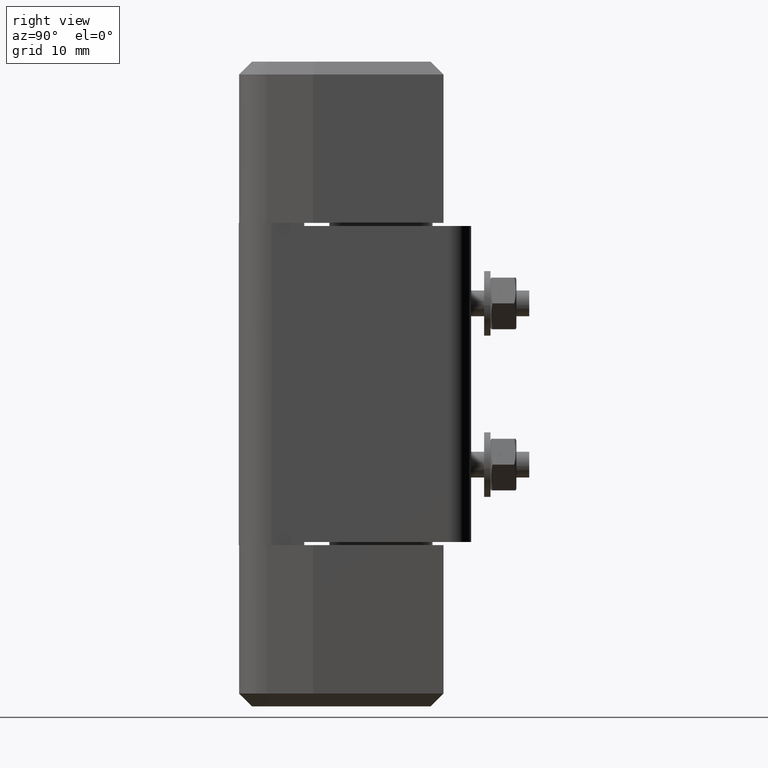
[diagram: clean part render]
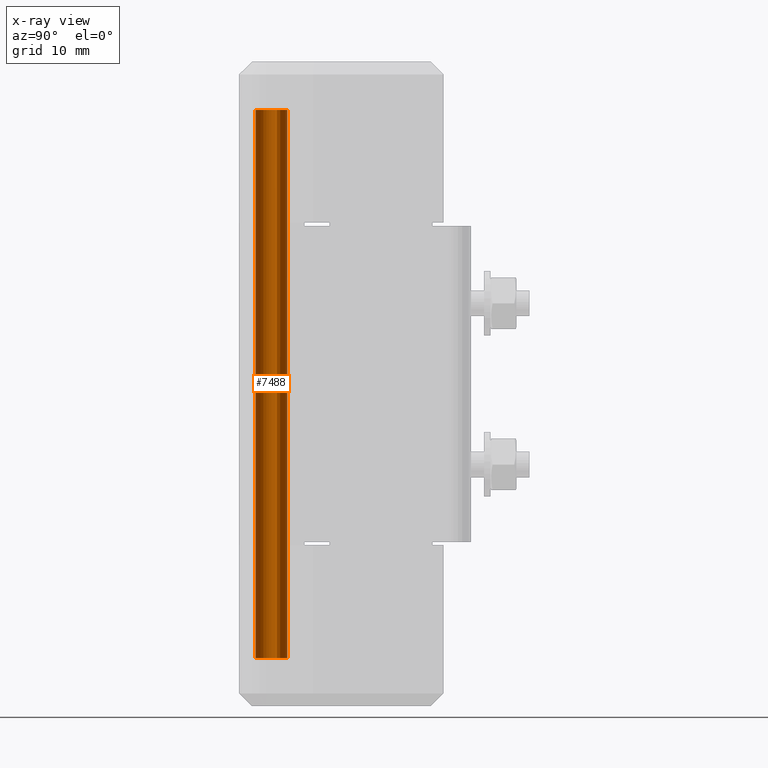
[diagram: x-ray — body ghosted, one internal face saturated and labeled with its STEP entity id]
A machine part, right view, then the same camera in x-ray: the body is ghosted and one INTERNAL B-rep face — a face not visible from any outside direction — is saturated and labeled: STEP entity #7488.
In plain terms, the highlighted face is a freeform B-spline surface patch.
Its self-contained STEP definition (entity closure, byte-faithful):
#7152=CARTESIAN_POINT('',(-2.499999916180715,0.0,7.500000356230601));
#7153=VERTEX_POINT('',#7152);
#7154=CARTESIAN_POINT('',(-0.196147734124220,2.492293250842695,7.500000356409508));
#7155=VERTEX_POINT('',#7154);
#7156=CARTESIAN_POINT('',(-2.499999916180715,0.0,7.500000356230601));
#7157=CARTESIAN_POINT('',(-2.499999916180714,2.310976149120914,7.500000356230601));
#7158=CARTESIAN_POINT('',(-0.196147734124220,2.492293250842695,7.500000356409508));
#7166=(BOUNDED_CURVE()B_SPLINE_CURVE(2,(#7156,#7157,#7158),.UNSPECIFIED.,.F.,.U.)B_SPLINE_CURVE_WITH_KNOTS((3,3),(0.0,0.236331300444724),.UNSPECIFIED.)CURVE()GEOMETRIC_REPRESENTATION_ITEM()RATIONAL_B_SPLINE_CURVE((1.0,0.723120658825503,0.969723355779383))REPRESENTATION_ITEM(''));
#7167=EDGE_CURVE('',#7153,#7155,#7166,.T.);
#7215=CARTESIAN_POINT('',(0.152621344146222,-2.495336912365707,7.500000356230601));
#7216=VERTEX_POINT('',#7215);
#7230=CARTESIAN_POINT('',(0.152621344146222,-2.495336912365706,7.500000356230601));
#7231=CARTESIAN_POINT('',(0.076381906112878,-2.499999916180715,7.500000356230601));
#7232=CARTESIAN_POINT('',(0.0,-2.499999916180715,7.500000356230601));
#7233=CARTESIAN_POINT('',(-2.499999916180715,-2.499999916180715,7.500000356230601));
#7234=CARTESIAN_POINT('',(-2.499999916180715,0.0,7.500000356230601));
#7242=(BOUNDED_CURVE()B_SPLINE_CURVE(2,(#7230,#7231,#7232,#7233,#7234),.UNSPECIFIED.,.F.,.U.)B_SPLINE_CURVE_WITH_KNOTS((3,2,3),(0.739332962183038,0.750000000000000,1.0),.UNSPECIFIED.)CURVE()GEOMETRIC_REPRESENTATION_ITEM()RATIONAL_B_SPLINE_CURVE((0.976072041546902,0.987502787834340,1.0,0.707106781186548,1.0))REPRESENTATION_ITEM(''));
#7243=EDGE_CURVE('',#7216,#7153,#7242,.T.);
#7266=CARTESIAN_POINT('',(2.340358868451774,0.879044906567890,7.500000356230601));
#7267=VERTEX_POINT('',#7266);
#7268=CARTESIAN_POINT('',(-0.196147734124220,2.492293250842696,7.500000356409508));
#7269=CARTESIAN_POINT('',(-0.098225265599204,2.499999916180715,7.500000356230601));
#7270=CARTESIAN_POINT('',(0.0,2.499999916180715,7.500000356230601));
#7271=CARTESIAN_POINT('',(1.731523931085099,2.499999916180714,7.500000356230600));
#7272=CARTESIAN_POINT('',(2.340358868451774,0.879044906567890,7.500000356230601));
#7280=(BOUNDED_CURVE()B_SPLINE_CURVE(2,(#7268,#7269,#7270,#7271,#7272),.UNSPECIFIED.,.F.,.U.)B_SPLINE_CURVE_WITH_KNOTS((3,2,3),(0.236331300444724,0.250000000000000,0.440284170890634),.UNSPECIFIED.)CURVE()GEOMETRIC_REPRESENTATION_ITEM()RATIONAL_B_SPLINE_CURVE((0.969723355779383,0.983986122361044,1.0,0.777068226794373,0.893499554625638))REPRESENTATION_ITEM(''));
#7281=EDGE_CURVE('',#7155,#7267,#7280,.T.);
#7364=CARTESIAN_POINT('',(2.340358868443881,0.879044906589181,92.500004393514303));
#7365=VERTEX_POINT('',#7364);
#7381=CARTESIAN_POINT('',(0.152621344436757,-2.495336912442856,92.500004393325014));
#7382=VERTEX_POINT('',#7381);
#7396=CARTESIAN_POINT('',(0.152621344436757,-2.495336912442856,92.500004393325014));
#7397=CARTESIAN_POINT('',(0.152621344146222,-2.495336912365707,7.500000356230601));
#7398=QUASI_UNIFORM_CURVE('',1,(#7396,#7397),.UNSPECIFIED.,.F.,.U.);
#7399=EDGE_CURVE('',#7382,#7216,#7398,.T.);
#7404=CARTESIAN_POINT('',(2.340358868443881,0.879044906589181,92.500004393514303));
#7405=CARTESIAN_POINT('',(2.340358868451774,0.879044906567890,7.500000356230601));
#7406=QUASI_UNIFORM_CURVE('',1,(#7404,#7405),.UNSPECIFIED.,.F.,.U.);
#7407=EDGE_CURVE('',#7365,#7267,#7406,.T.);
#7412=CARTESIAN_POINT('',(0.152621343720103,-2.495336912391817,94.625004494446401));
#7413=CARTESIAN_POINT('',(-2.342715568671714,-2.647958256111921,94.625004494446401));
#7414=CARTESIAN_POINT('',(-2.495336912391817,-0.152621343720103,94.625004494446401));
#7415=CARTESIAN_POINT('',(-2.647958256111921,2.342715568671714,94.625004494446401));
#7416=CARTESIAN_POINT('',(-0.152621343720103,2.495336912391817,94.625004494446401));
#7417=CARTESIAN_POINT('',(1.690923897814914,2.608092969730056,94.625004494446401));
#7418=CARTESIAN_POINT('',(2.340358868474846,0.879044906506597,94.625004494446401));
#7419=CARTESIAN_POINT('',(0.152621343720103,-2.495336912391817,5.321875252775214));
#7420=CARTESIAN_POINT('',(-2.342715568671714,-2.647958256111921,5.321875252775214));
#7421=CARTESIAN_POINT('',(-2.495336912391817,-0.152621343720103,5.321875252775214));
#7422=CARTESIAN_POINT('',(-2.647958256111921,2.342715568671714,5.321875252775214));
#7423=CARTESIAN_POINT('',(-0.152621343720103,2.495336912391817,5.321875252775214));
#7424=CARTESIAN_POINT('',(1.690923897814914,2.608092969730056,5.321875252775214));
#7425=CARTESIAN_POINT('',(2.340358868474846,0.879044906506597,5.321875252775214));
#7433=(BOUNDED_SURFACE()B_SPLINE_SURFACE(2,1,((#7412,#7419),(#7413,#7420),(#7414,#7421),(#7415,#7422),(#7416,#7423),(#7417,#7424),(#7418,#7425)),.UNSPECIFIED.,.F.,.F.,.U.)B_SPLINE_SURFACE_WITH_KNOTS((3,2,2,3),(2,2),(0.0,4.142135484854769,8.284270969709537,11.597979357593349),(0.0,89.303129241671186),.UNSPECIFIED.)GEOMETRIC_REPRESENTATION_ITEM()RATIONAL_B_SPLINE_SURFACE(((1.0,1.0),(0.707106781186548,0.707106781186548),(1.0,1.0),(0.707106781186548,0.707106781186548),(1.0,1.0),(0.765685424949238,0.765685424949238),(0.906274169979695,0.906274169979695)))REPRESENTATION_ITEM('')SURFACE());
#7434=CARTESIAN_POINT('',(-0.295085576774687,2.482523732676187,92.500004393511034));
#7435=VERTEX_POINT('',#7434);
#7436=CARTESIAN_POINT('',(-0.295085576774687,2.482523732676187,92.500004393511034));
#7437=CARTESIAN_POINT('',(-0.148060294191863,2.499999916180911,92.500004393514288));
#7438=CARTESIAN_POINT('',(0.0,2.499999916180910,92.500004393514288));
#7439=CARTESIAN_POINT('',(1.731523931051641,2.499999916180910,92.500004393514288));
#7440=CARTESIAN_POINT('',(2.340358868443881,0.879044906589181,92.500004393514317));
#7448=(BOUNDED_CURVE()B_SPLINE_CURVE(2,(#7436,#7437,#7438,#7439,#7440),.UNSPECIFIED.,.F.,.U.)B_SPLINE_CURVE_WITH_KNOTS((3,2,3),(0.229562473512114,0.250000000000000,0.440284170887765),.UNSPECIFIED.)CURVE()GEOMETRIC_REPRESENTATION_ITEM()RATIONAL_B_SPLINE_CURVE((0.956026754180967,0.976055948329512,1.0,0.777068226797734,0.893499554622128))REPRESENTATION_ITEM(''));
#7449=EDGE_CURVE('',#7435,#7365,#7448,.T.);
#7450=ORIENTED_EDGE('',*,*,#7449,.T.);
#7451=ORIENTED_EDGE('',*,*,#7407,.T.);
#7452=ORIENTED_EDGE('',*,*,#7281,.F.);
#7453=ORIENTED_EDGE('',*,*,#7167,.F.);
#7454=ORIENTED_EDGE('',*,*,#7243,.F.);
#7455=ORIENTED_EDGE('',*,*,#7399,.F.);
#7456=CARTESIAN_POINT('',(-2.499999916180910,0.0,92.500004393514288));
#7457=VERTEX_POINT('',#7456);
#7458=CARTESIAN_POINT('',(0.152621344436757,-2.495336912442856,92.500004393325014));
#7459=CARTESIAN_POINT('',(0.076381907111298,-2.499999916180910,92.500004393514288));
#7460=CARTESIAN_POINT('',(0.0,-2.499999916180910,92.500004393514288));
#7461=CARTESIAN_POINT('',(-2.499999916180911,-2.499999916180911,92.500004393514288));
#7462=CARTESIAN_POINT('',(-2.499999916180910,0.0,92.500004393514288));
#7470=(BOUNDED_CURVE()B_SPLINE_CURVE(2,(#7458,#7459,#7460,#7461,#7462),.UNSPECIFIED.,.F.,.U.)B_SPLINE_CURVE_WITH_KNOTS((3,2,3),(0.739332962045348,0.750000000000000,1.0),.UNSPECIFIED.)CURVE()GEOMETRIC_REPRESENTATION_ITEM()RATIONAL_B_SPLINE_CURVE((0.976072041251806,0.987502787673026,1.0,0.707106781186547,1.0))REPRESENTATION_ITEM(''));
#7471=EDGE_CURVE('',#7382,#7457,#7470,.T.);
#7472=ORIENTED_EDGE('',*,*,#7471,.T.);
#7473=CARTESIAN_POINT('',(-2.499999916180910,0.0,92.500004393514288));
#7474=CARTESIAN_POINT('',(-2.499999916180911,2.220436240385736,92.500004393514288));
#7475=CARTESIAN_POINT('',(-0.295085576774687,2.482523732676187,92.500004393511034));
#7483=(BOUNDED_CURVE()B_SPLINE_CURVE(2,(#7473,#7474,#7475),.UNSPECIFIED.,.F.,.U.)B_SPLINE_CURVE_WITH_KNOTS((3,3),(0.0,0.229562473512114),.UNSPECIFIED.)CURVE()GEOMETRIC_REPRESENTATION_ITEM()RATIONAL_B_SPLINE_CURVE((1.0,0.731050832857036,0.956026754180967))REPRESENTATION_ITEM(''));
#7484=EDGE_CURVE('',#7457,#7435,#7483,.T.);
#7485=ORIENTED_EDGE('',*,*,#7484,.T.);
#7486=EDGE_LOOP('',(#7450,#7451,#7452,#7453,#7454,#7455,#7472,#7485));
#7487=FACE_OUTER_BOUND('',#7486,.T.);
#7488=ADVANCED_FACE('',(#7487),#7433,.T.);